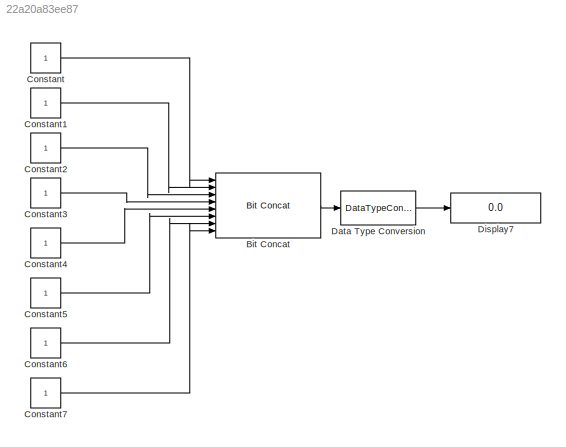
MODEL slx_22a20a83ee87
KIND model
CONFIG AbsTol = auto
CONFIG FixedStep = auto
CONFIG MaxStep = auto
CONFIG MinStep = auto
CONFIG RelTol = 1e-3
CONFIG SampleTimeConstraint = Unconstrained
CONFIG Solver = VariableStepAuto
CONFIG SolverMode = Auto
CONFIG SolverName = VariableStepAuto
CONFIG StartTime = 0.0
CONFIG StopTime = 10.0
BLOCK [Reference] Bit Concat  REF=hdlsllib/HDL Operations/Bit Concat
  Ports = [8, 1]
  SourceBlock = hdlsllib/HDL Operations/Bit Concat
  SourceType = Bit Concat
BLOCK [Constant] Constant
  OutDataTypeStr = boolean
BLOCK [Constant] Constant1
  OutDataTypeStr = boolean
BLOCK [Constant] Constant2
  OutDataTypeStr = boolean
BLOCK [Constant] Constant3
  OutDataTypeStr = boolean
BLOCK [Constant] Constant4
  OutDataTypeStr = boolean
BLOCK [Constant] Constant5
  OutDataTypeStr = boolean
BLOCK [Constant] Constant6
  OutDataTypeStr = boolean
BLOCK [Constant] Constant7
  OutDataTypeStr = boolean
BLOCK [DataTypeConversion] Data Type Conversion
  ConvertRealWorld = Stored Integer (SI)
  OutDataTypeStr = int8
  RndMeth = Floor
  SaturateOnIntegerOverflow = off
BLOCK [Display] Display7
  Decimation = 1
  Format = decimal (Stored Integer)
  Ports = [1]
LINE Bit Concat:1 -> Data Type Conversion:1
LINE Constant1:1 -> Bit Concat:2
LINE Constant2:1 -> Bit Concat:3
LINE Constant3:1 -> Bit Concat:4
LINE Constant4:1 -> Bit Concat:5
LINE Constant5:1 -> Bit Concat:6
LINE Constant6:1 -> Bit Concat:7
LINE Constant7:1 -> Bit Concat:8
LINE Constant:1 -> Bit Concat:1
LINE Data Type Conversion:1 -> Display7:1
